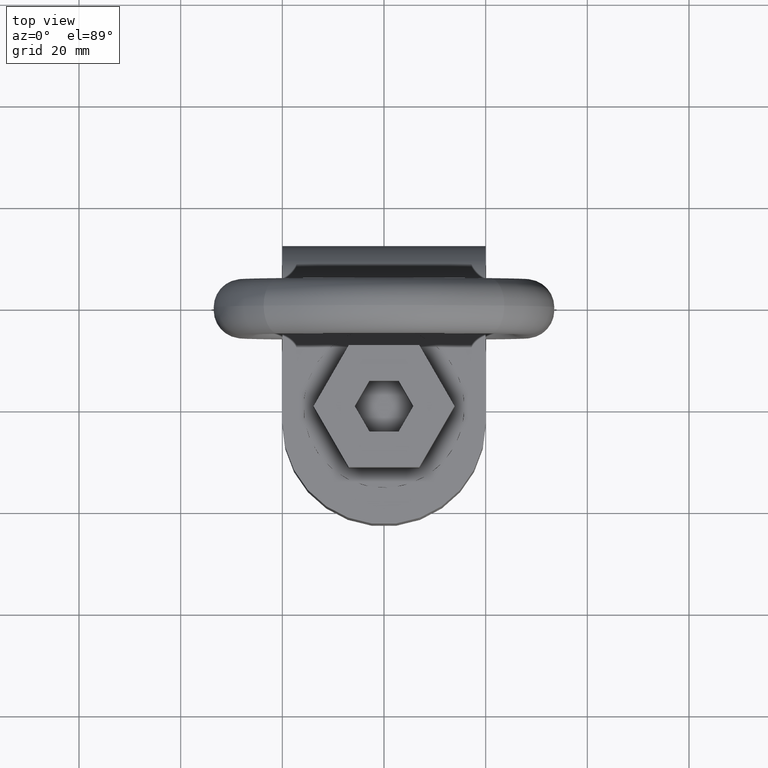
[diagram: clean part render]
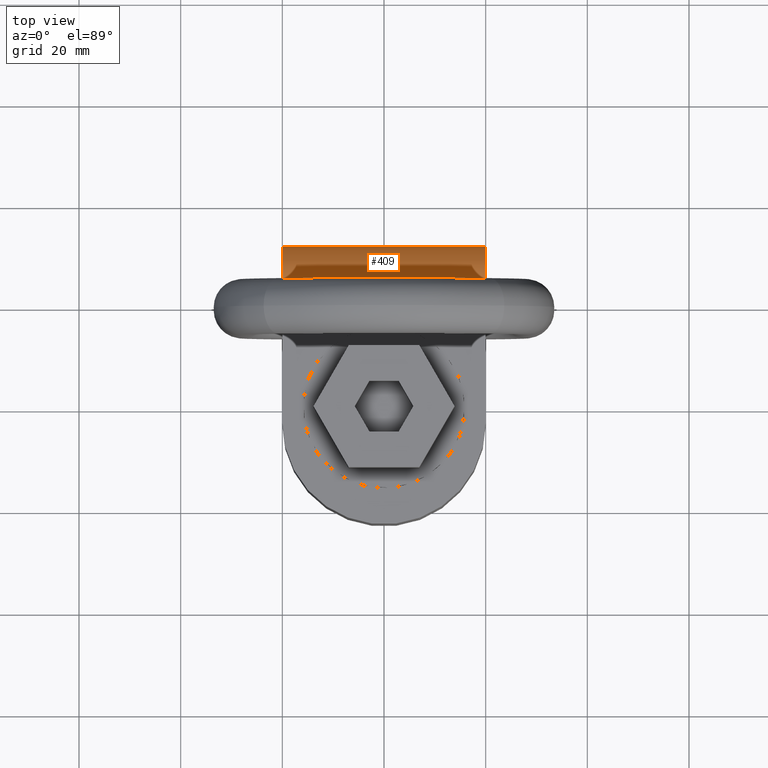
[diagram: same view with one face highlighted and labeled with its STEP entity id]
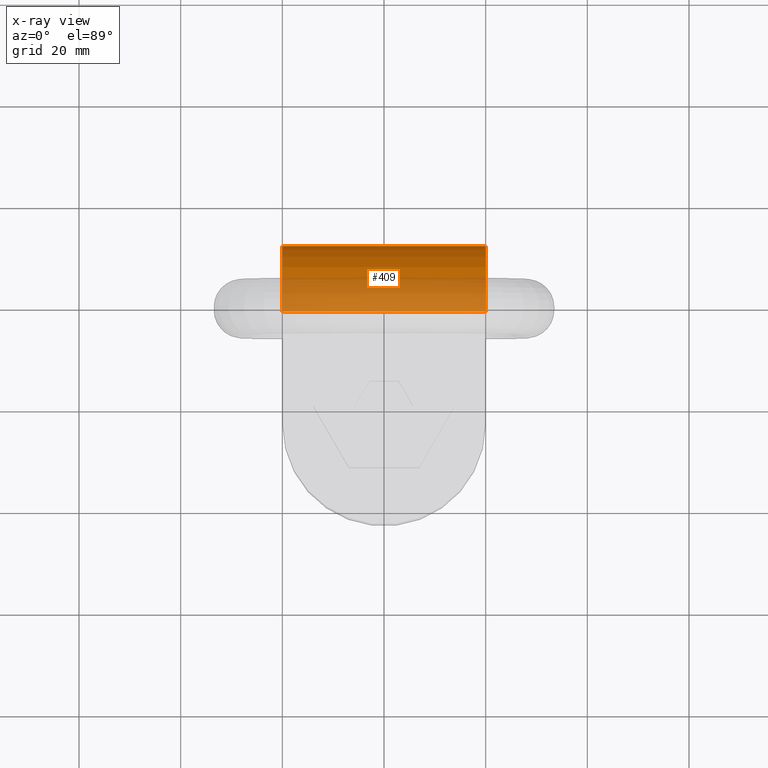
[diagram: x-ray of the same camera — body ghosted, the highlighted face saturated]
A machine part, top view. The second image highlights one B-rep face of the part: STEP entity #409.
The next image is the same camera in x-ray: the body ghosted, the highlighted face saturated — about 52% of this face is hidden behind the body in this view.
In plain terms, the highlighted cylindrical surface (partial cylindrical patch) has radius 12.755 mm, axis along (-1, 0, 0).
Its self-contained STEP definition (entity closure, byte-faithful):
#244=FACE_OUTER_BOUND('',#638,.T.);
#409=ADVANCED_FACE('',(#244),#536,.T.);
#536=CYLINDRICAL_SURFACE('',#2454,12.755);
#638=EDGE_LOOP('',(#1203,#1204,#1205,#1206));
#795=LINE('',#3801,#921);
#797=LINE('',#3807,#923);
#921=VECTOR('',#2622,1.);
#923=VECTOR('',#2628,1.);
#1103=CIRCLE('',#2452,12.755);
#1104=CIRCLE('',#2453,12.755);
#1203=ORIENTED_EDGE('',*,*,#2019,.T.);
#1204=ORIENTED_EDGE('',*,*,#2016,.F.);
#1205=ORIENTED_EDGE('',*,*,#2020,.F.);
#1206=ORIENTED_EDGE('',*,*,#2013,.T.);
#1801=VERTEX_POINT('',#3798);
#1802=VERTEX_POINT('',#3800);
#1804=VERTEX_POINT('',#3806);
#1805=VERTEX_POINT('',#3808);
#2013=EDGE_CURVE('',#1801,#1802,#795,.T.);
#2016=EDGE_CURVE('',#1804,#1805,#797,.T.);
#2019=EDGE_CURVE('',#1802,#1805,#1103,.T.);
#2020=EDGE_CURVE('',#1801,#1804,#1104,.T.);
#2452=AXIS2_PLACEMENT_3D('',#3813,#2634,#2635);
#2453=AXIS2_PLACEMENT_3D('',#3814,#2636,#2637);
#2454=AXIS2_PLACEMENT_3D('',#3815,#2638,#2639);
#2622=DIRECTION('',(-1.,0.,0.));
#2628=DIRECTION('',(-1.,0.,0.));
#2634=DIRECTION('',(1.,0.,0.));
#2635=DIRECTION('',(0.,1.,0.));
#2636=DIRECTION('',(1.,0.,0.));
#2637=DIRECTION('',(0.,1.,0.));
#2638=DIRECTION('',(-1.,0.,0.));
#2639=DIRECTION('',(0.,0.,1.));
#3798=CARTESIAN_POINT('',(20.,19.245,3.50771789478736E-15));
#3800=CARTESIAN_POINT('',(-20.,19.245,3.50771789478736E-15));
#3801=CARTESIAN_POINT('',(20.,19.245,3.50771789478736E-15));
#3806=CARTESIAN_POINT('',(20.,19.245,25.51));
#3807=CARTESIAN_POINT('',(20.,19.245,25.51));
#3808=CARTESIAN_POINT('',(-20.,19.245,25.51));
#3813=CARTESIAN_POINT('',(-20.,19.245,12.755));
#3814=CARTESIAN_POINT('',(20.,19.245,12.755));
#3815=CARTESIAN_POINT('',(20.,19.245,12.755));